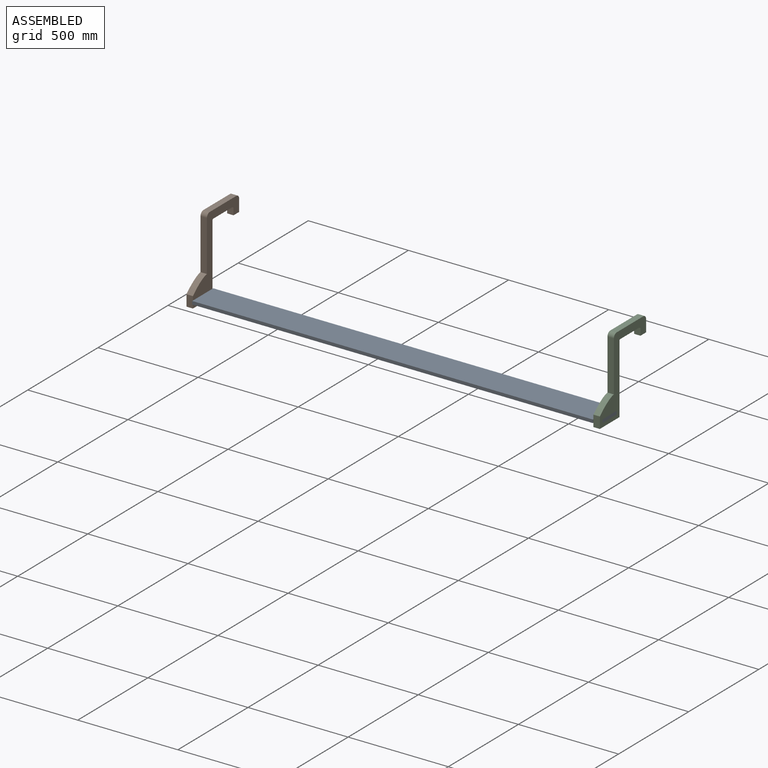
[diagram: assembled view]
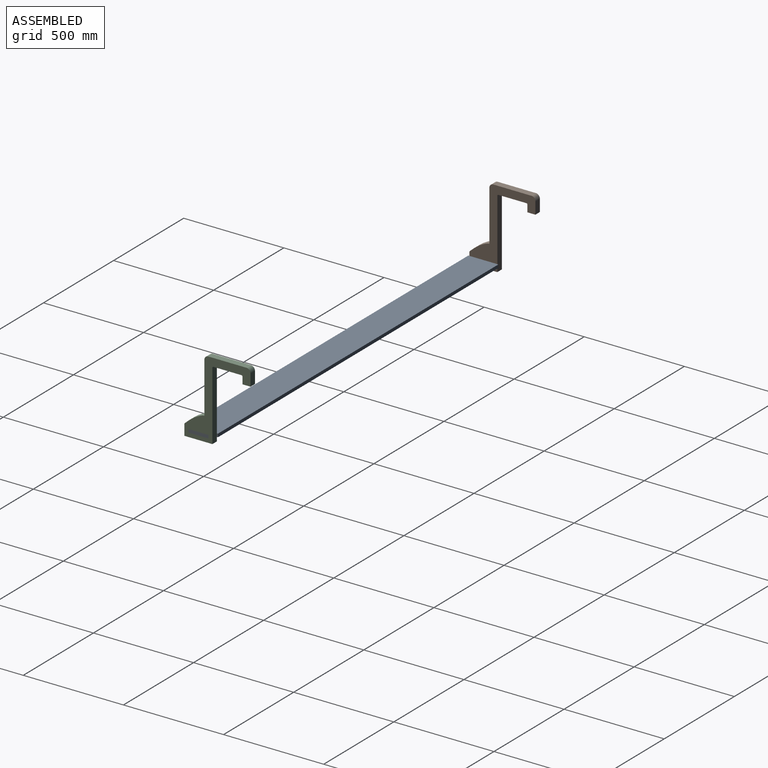
[diagram: assembled view, second angle]
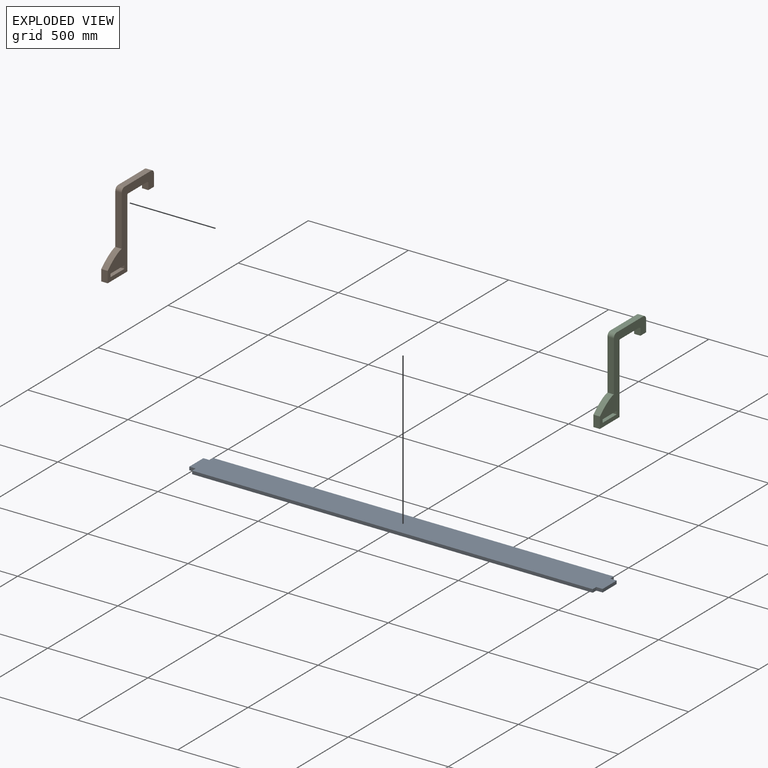
[diagram: exploded view]
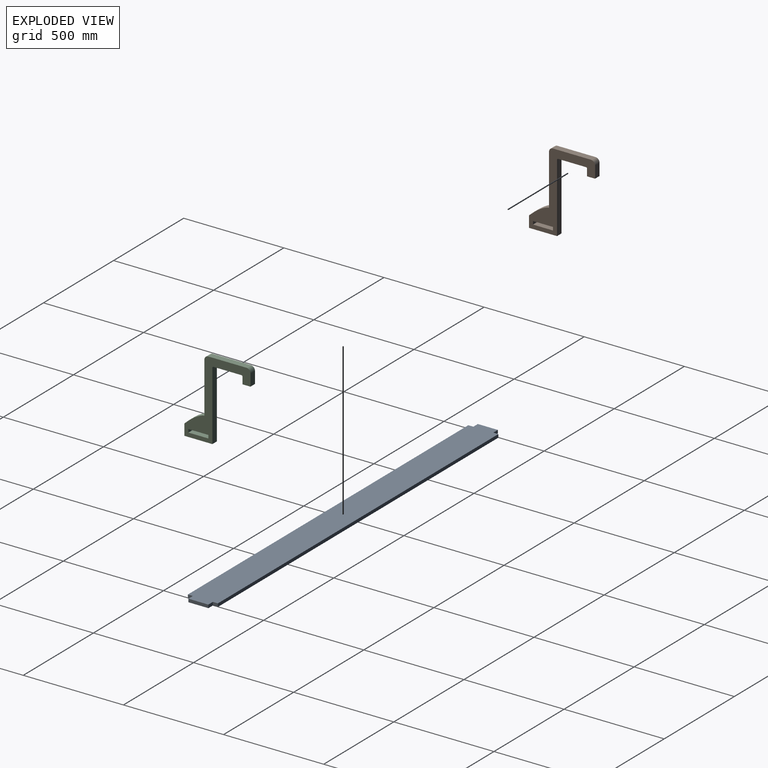
[diagram: exploded view, second angle]
ASSEMBLY  parts=3 mates=2
PART A: 14 faces, bbox 2064x150x16 mm
  f0: plane 25x16mm, normal (1,0,0), area 400mm2, adj f1,f11,f12,f13
  f1: plane 32x16mm, normal (0,-1,0), area 512mm2, adj f0,f2,f12,f13
  f2: plane 100x16mm, normal (1,0,0), area 1600mm2, adj f1,f3,f12,f13
  f3: plane 32x16mm, normal (0,1,0), area 512mm2, adj f2,f4,f12,f13
  f4: plane 25x16mm, normal (1,0,0), area 400mm2, adj f3,f5,f12,f13
  f5: plane 2000x16mm, normal (0,1,0), area 32000mm2, adj f4,f6,f12,f13
  f6: plane 25x16mm, normal (-1,0,0), area 400mm2, adj f5,f7,f12,f13
  f7: plane 32x16mm, normal (0,1,0), area 512mm2, adj f6,f8,f12,f13
  f8: plane 100x16mm, normal (-1,0,0), area 1600mm2, adj f7,f9,f12,f13
  f9: plane 32x16mm, normal (0,-1,0), area 512mm2, adj f8,f10,f12,f13
  f10: plane 25x16mm, normal (-1,0,0), area 400mm2, adj f9,f11,f12,f13
  f11: plane 2000x16mm, normal (0,-1,0), area 32000mm2, adj f0,f10,f12,f13
  f12: plane 2064x150mm, normal (0,0,1), area 306400mm2, adj f0,f1,f2,f3,f4,f5,f6,f7
  f13: plane 2064x150mm, normal (0,0,-1), area 306400mm2, adj f0,f1,f2,f3,f4,f5,f6,f7
PART B: 20 faces, bbox 330x390x32 mm
  f0: plane 32x16mm, normal (1,0,0), area 512mm2, adj f1,f17,f18,f19
  f1: plane 100x32mm, normal (0,-1,0), area 3200mm2, adj f0,f2,f18,f19
  f2: plane 32x16mm, normal (-1,0,0), area 512mm2, adj f1,f17,f18,f19
  f3: plane 252.41x32mm, normal (1,0,0), area 8077.2mm2, adj f4,f16,f18,f19
  f4: cylinder r=20mm len=32mm, axis (0,0,-1), area 1005.3mm2, adj f3,f5,f18,f19
  f5: plane 190x32mm, normal (0,1,0), area 6080mm2, adj f4,f6,f18,f19
  f6: cylinder r=20mm len=32mm, axis (0,0,-1), area 1005.3mm2, adj f5,f7,f18,f19
  f7: plane 60x32mm, normal (-1,0,0), area 1920mm2, adj f6,f8,f18,f19
  f8: plane 40x32mm, normal (0,-1,0), area 1280mm2, adj f7,f9,f18,f19
  f9: plane 35x32mm, normal (1,0,0), area 1120mm2, adj f8,f10,f18,f19
  f10: cylinder r=5mm len=32mm, axis (0,0,-1), area 251.3mm2, adj f9,f11,f18,f19
  f11: plane 140x32mm, normal (0,-1,0), area 4480mm2, adj f10,f12,f18,f19
  f12: cylinder r=5mm len=32mm, axis (0,0,-1), area 251.3mm2, adj f11,f13,f18,f19
  f13: plane 345x32mm, normal (-1,0,0), area 11040mm2, adj f12,f14,f18,f19
  f14: plane 140x32mm, normal (0,-1,0), area 4480mm2, adj f13,f15,f18,f19
  f15: plane 56x32mm, normal (1,0,0), area 1792mm2, adj f14,f16,f18,f19
  f16: extruded ~100x61.59mm, area 3809.4mm2, adj f3,f15,f18,f19
  f17: plane 100x32mm, normal (0,1,0), area 3200mm2, adj f0,f2,f18,f19
  f18: plane 390x330mm, normal (0,0,1), area 32355.4mm2, adj f0,f1,f2,f3,f4,f5,f6,f7
  f19: plane 390x330mm, normal (0,0,-1), area 32355.4mm2, adj f0,f1,f2,f3,f4,f5,f6,f7
PART C: same geometry as B
PLACE A t=(-1139.69,-274.6,-26.88)mm
PLACE B rot(axis=(0.58,-0.58,-0.58),120deg) t=(-1442.35,-879.32,34.71)mm
PLACE C rot(axis=(0.58,-0.58,-0.58),120deg) t=(589.65,-879.32,34.71)mm
MATE fastened C.f19 <-> A.f2  axis (1,0,0) through (589.65,-312.98,-10.88)mm
MATE fastened B.f18 <-> A.f8  axis (-1,0,0) through (-1474.35,-312.98,-10.88)mm
